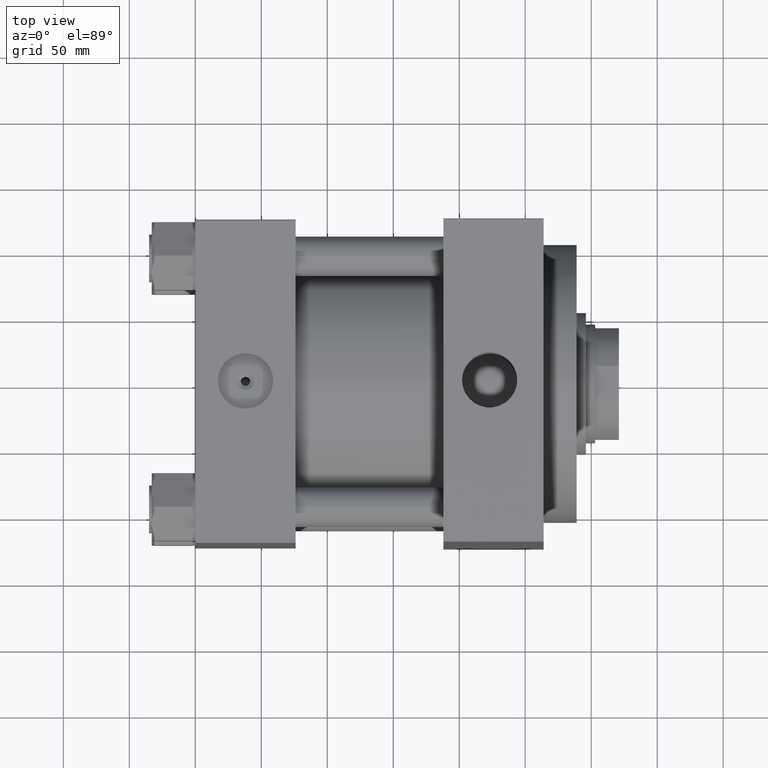
[diagram: clean part render]
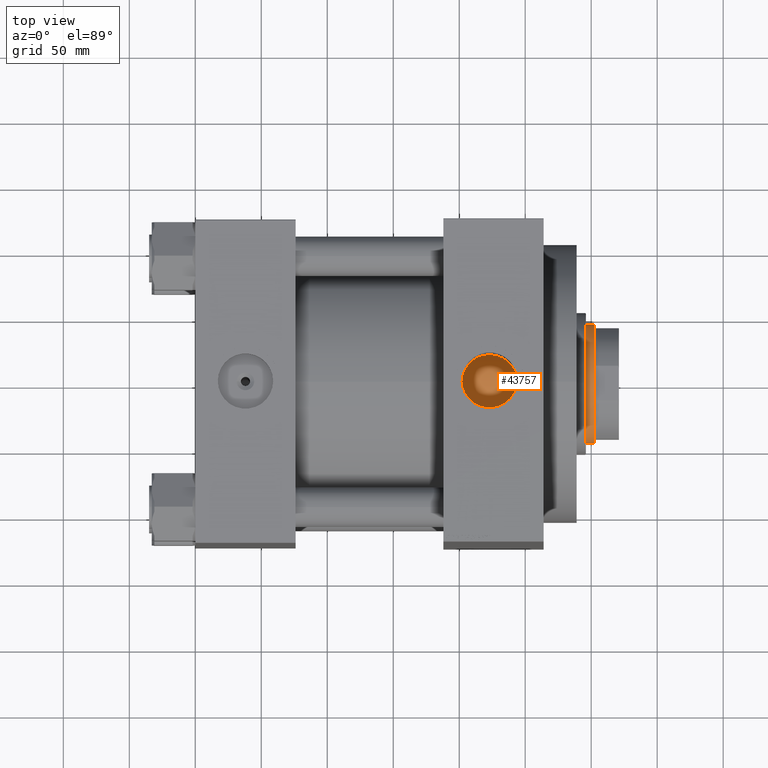
[diagram: same view with one face highlighted and labeled with its STEP entity id]
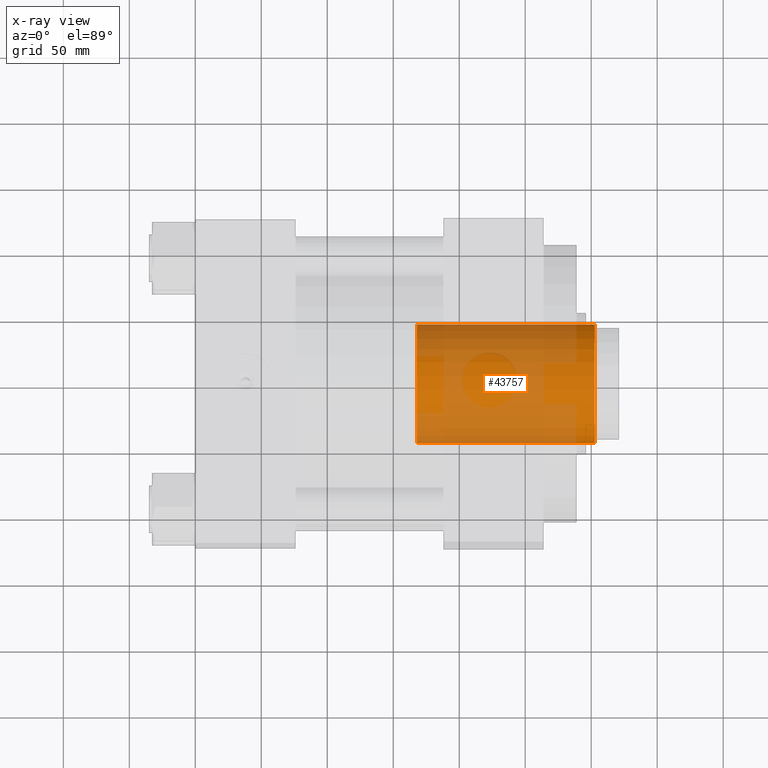
[diagram: x-ray of the same camera — body ghosted, the highlighted face saturated]
A machine part, top view. The second image highlights one B-rep face of the part: STEP entity #43757.
The next image is the same camera in x-ray: the body ghosted, the highlighted face saturated — about 65% of this face is hidden behind the body in this view.
In plain terms, the highlighted cylindrical surface (partial cylindrical patch) has radius 45 mm, axis along (-1, 0, 0).
Its self-contained STEP definition (entity closure, byte-faithful):
#422 = CARTESIAN_POINT ( 'NONE',  ( 0.000000000000000000, 0.000000000000000000, 227.0000000000000000 ) ) ;
#607 = CARTESIAN_POINT ( 'NONE',  ( 0.000000000000000000, 0.000000000000000000, 226.4999999999998863 ) ) ;
#1074 = CARTESIAN_POINT ( 'NONE',  ( 0.000000000000000000, 0.000000000000000000, 92.00000000000000000 ) ) ;
#1357 = DIRECTION ( 'NONE',  ( -1.000000000000000000, 0.000000000000000000, 0.000000000000000000 ) ) ;
#1528 = AXIS2_PLACEMENT_3D ( 'NONE', #1074, #7366, #22040 ) ;
#2216 = AXIS2_PLACEMENT_3D ( 'NONE', #607, #15520, #15756 ) ;
#2736 = ORIENTED_EDGE ( 'NONE', *, *, #7275, .T. ) ;
#3295 = VECTOR ( 'NONE', #41101, 1000.000000000000000 ) ;
#4737 = CARTESIAN_POINT ( 'NONE',  ( 45.00000000000000711, 5.510910596163090344E-15, 226.4999999999998863 ) ) ;
#5684 = DIRECTION ( 'NONE',  ( -0.000000000000000000, -0.000000000000000000, -1.000000000000000000 ) ) ;
#7275 = EDGE_CURVE ( 'NONE', #40523, #24618, #36908, .T. ) ;
#7366 = DIRECTION ( 'NONE',  ( 0.000000000000000000, 0.000000000000000000, 1.000000000000000000 ) ) ;
#7746 = CARTESIAN_POINT ( 'NONE',  ( -45.00000000000000711, 0.000000000000000000, 226.4999999999998863 ) ) ;
#7780 = ORIENTED_EDGE ( 'NONE', *, *, #13018, .T. ) ;
#10999 = LINE ( 'NONE', #11946, #3295 ) ;
#11946 = CARTESIAN_POINT ( 'NONE',  ( -45.00000000000000711, 0.000000000000000000, 227.0000000000000000 ) ) ;
#13018 = EDGE_CURVE ( 'NONE', #39354, #40523, #10999, .T. ) ;
#15274 = CIRCLE ( 'NONE', #2216, 45.00000000000000711 ) ;
#15520 = DIRECTION ( 'NONE',  ( 0.000000000000000000, 0.000000000000000000, -1.000000000000000000 ) ) ;
#15756 = DIRECTION ( 'NONE',  ( 1.000000000000000000, 0.000000000000000000, 0.000000000000000000 ) ) ;
#18704 = CYLINDRICAL_SURFACE ( 'NONE', #35536, 45.00000000000000711 ) ;
#18849 = EDGE_LOOP ( 'NONE', ( #19314, #44691, #7780, #2736 ) ) ;
#19314 = ORIENTED_EDGE ( 'NONE', *, *, #23120, .F. ) ;
#19449 = VERTEX_POINT ( 'NONE', #4737 ) ;
#22040 = DIRECTION ( 'NONE',  ( 1.000000000000000000, 0.000000000000000000, 0.000000000000000000 ) ) ;
#23120 = EDGE_CURVE ( 'NONE', #19449, #24618, #23987, .T. ) ;
#23987 = LINE ( 'NONE', #27844, #31938 ) ;
#24618 = VERTEX_POINT ( 'NONE', #41092 ) ;
#26423 = DIRECTION ( 'NONE',  ( -0.000000000000000000, -0.000000000000000000, -1.000000000000000000 ) ) ;
#27844 = CARTESIAN_POINT ( 'NONE',  ( 45.00000000000000711, 5.510910596163090344E-15, 227.0000000000000000 ) ) ;
#30726 = FACE_OUTER_BOUND ( 'NONE', #18849, .T. ) ;
#31861 = CARTESIAN_POINT ( 'NONE',  ( -45.00000000000000711, 0.000000000000000000, 92.00000000000000000 ) ) ;
#31938 = VECTOR ( 'NONE', #5684, 1000.000000000000000 ) ;
#33578 = EDGE_CURVE ( 'NONE', #19449, #39354, #15274, .T. ) ;
#35536 = AXIS2_PLACEMENT_3D ( 'NONE', #422, #26423, #1357 ) ;
#36908 = CIRCLE ( 'NONE', #1528, 45.00000000000000711 ) ;
#39354 = VERTEX_POINT ( 'NONE', #7746 ) ;
#40523 = VERTEX_POINT ( 'NONE', #31861 ) ;
#41092 = CARTESIAN_POINT ( 'NONE',  ( 45.00000000000000711, 5.510910596163090344E-15, 92.00000000000000000 ) ) ;
#41101 = DIRECTION ( 'NONE',  ( -0.000000000000000000, -0.000000000000000000, -1.000000000000000000 ) ) ;
#43757 = ADVANCED_FACE ( 'NONE', ( #30726 ), #18704, .T. ) ;
#44691 = ORIENTED_EDGE ( 'NONE', *, *, #33578, .T. ) ;